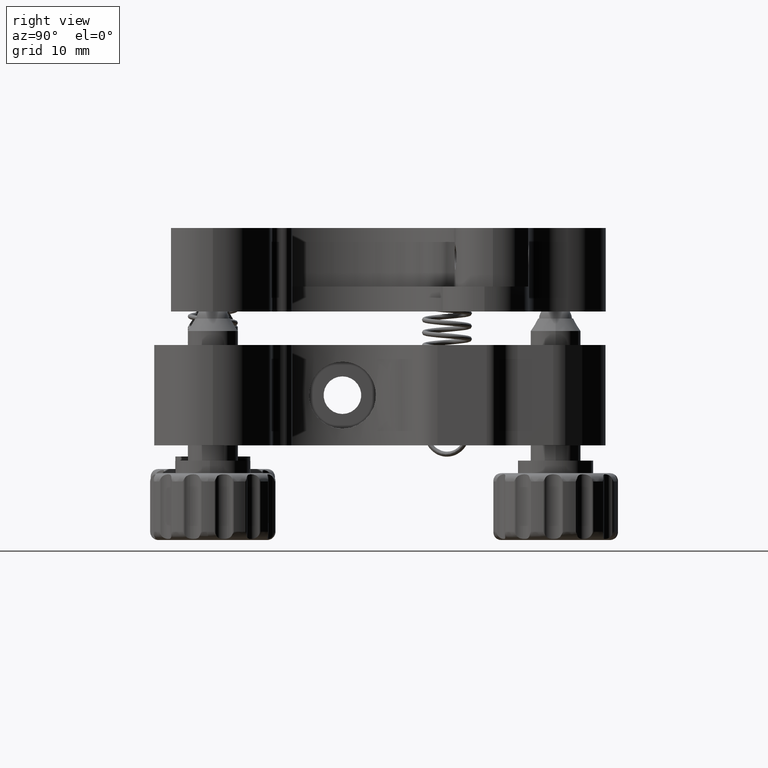
[diagram: clean part render]
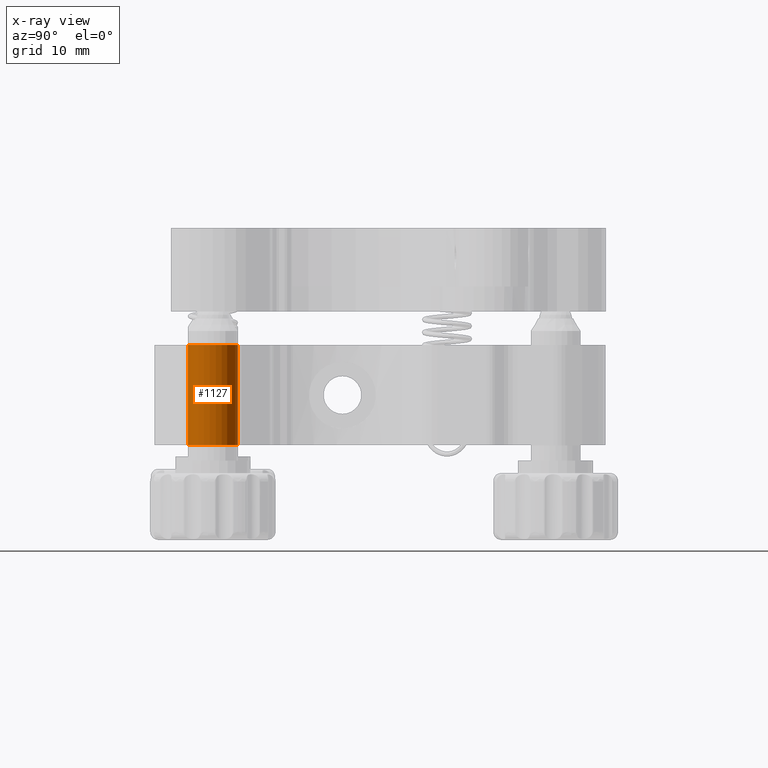
[diagram: x-ray — body ghosted, one internal face saturated and labeled with its STEP entity id]
A machine part, right view, then the same camera in x-ray: the body is ghosted and one INTERNAL B-rep face — a face not visible from any outside direction — is saturated and labeled: STEP entity #1127.
In plain terms, the highlighted cylindrical surface (edge-blend (fillet) strip) has radius 3 mm, axis along (-0, -0, -1).
Its self-contained STEP definition (entity closure, byte-faithful):
#544 = AXIS2_PLACEMENT_3D ( 'NONE', #21194, #14849, #16309 ) ;
#758 = ORIENTED_EDGE ( 'NONE', *, *, #7782, .T. ) ;
#1127 = ADVANCED_FACE ( 'NONE', ( #2878 ), #6446, .F. ) ;
#1494 = VECTOR ( 'NONE', #2985, 1000.000000000000000 ) ;
#1638 = ORIENTED_EDGE ( 'NONE', *, *, #14376, .F. ) ;
#2099 = VERTEX_POINT ( 'NONE', #5412 ) ;
#2111 = CARTESIAN_POINT ( 'NONE',  ( 25.49999999999999600, -15.50000000000000000, 0.0000000000000000000 ) ) ;
#2878 = FACE_OUTER_BOUND ( 'NONE', #5217, .T. ) ;
#2985 = DIRECTION ( 'NONE',  ( -8.887851410031169500E-063, -1.094764425253763300E-047, -1.000000000000000000 ) ) ;
#3057 = CARTESIAN_POINT ( 'NONE',  ( 25.49999999999999600, -18.50000000000000400, 3.605340855892906800E-031 ) ) ;
#3546 = CARTESIAN_POINT ( 'NONE',  ( 25.49999999999999600, -12.49999999999999600, -3.605340855892906800E-031 ) ) ;
#3923 = AXIS2_PLACEMENT_3D ( 'NONE', #2111, #6974, #16870 ) ;
#4256 = VERTEX_POINT ( 'NONE', #12032 ) ;
#5217 = EDGE_LOOP ( 'NONE', ( #1638, #10899, #758, #20813 ) ) ;
#5246 = DIRECTION ( 'NONE',  ( 0.0000000000000000000, 1.000000000000000000, -1.201780285297634500E-031 ) ) ;
#5412 = CARTESIAN_POINT ( 'NONE',  ( 25.49999999999999600, -12.50000000000000000, -12.00000000000000000 ) ) ;
#5489 = VECTOR ( 'NONE', #10174, 1000.000000000000000 ) ;
#6446 = CYLINDRICAL_SURFACE ( 'NONE', #19627, 3.000000000000002700 ) ;
#6974 = DIRECTION ( 'NONE',  ( 8.887851410031169500E-063, 1.094764425253763300E-047, 1.000000000000000000 ) ) ;
#7563 = LINE ( 'NONE', #3546, #5489 ) ;
#7782 = EDGE_CURVE ( 'NONE', #18499, #2099, #7563, .T. ) ;
#9158 = CARTESIAN_POINT ( 'NONE',  ( 25.49999999999999600, -12.50000000000000000, -4.276423536147508200E-047 ) ) ;
#10174 = DIRECTION ( 'NONE',  ( -8.887851410031169500E-063, -1.094764425253763300E-047, -1.000000000000000000 ) ) ;
#10363 = EDGE_CURVE ( 'NONE', #4256, #2099, #16199, .T. ) ;
#10899 = ORIENTED_EDGE ( 'NONE', *, *, #20963, .T. ) ;
#12032 = CARTESIAN_POINT ( 'NONE',  ( 25.49999999999999600, -18.50000000000000000, -12.00000000000000000 ) ) ;
#12403 = CIRCLE ( 'NONE', #3923, 3.000000000000002700 ) ;
#12434 = DIRECTION ( 'NONE',  ( -8.887851410031169500E-063, -1.094764425253763300E-047, -1.000000000000000000 ) ) ;
#14376 = EDGE_CURVE ( 'NONE', #19952, #4256, #15289, .T. ) ;
#14849 = DIRECTION ( 'NONE',  ( 8.887851410031169500E-063, 1.094764425253763300E-047, 1.000000000000000000 ) ) ;
#15289 = LINE ( 'NONE', #3057, #1494 ) ;
#15635 = CARTESIAN_POINT ( 'NONE',  ( 25.49999999999999600, -18.50000000000000000, 4.276423536147508200E-047 ) ) ;
#16199 = CIRCLE ( 'NONE', #544, 3.000000000000002700 ) ;
#16309 = DIRECTION ( 'NONE',  ( 0.0000000000000000000, -1.000000000000000000, 0.0000000000000000000 ) ) ;
#16870 = DIRECTION ( 'NONE',  ( 0.0000000000000000000, -1.000000000000000000, 1.201780285297634500E-031 ) ) ;
#18499 = VERTEX_POINT ( 'NONE', #9158 ) ;
#19627 = AXIS2_PLACEMENT_3D ( 'NONE', #20925, #12434, #5246 ) ;
#19952 = VERTEX_POINT ( 'NONE', #15635 ) ;
#20813 = ORIENTED_EDGE ( 'NONE', *, *, #10363, .F. ) ;
#20925 = CARTESIAN_POINT ( 'NONE',  ( 25.49999999999999600, -15.50000000000000000, 0.0000000000000000000 ) ) ;
#20963 = EDGE_CURVE ( 'NONE', #19952, #18499, #12403, .T. ) ;
#21194 = CARTESIAN_POINT ( 'NONE',  ( 25.49999999999999600, -15.50000000000000000, -12.00000000000000000 ) ) ;